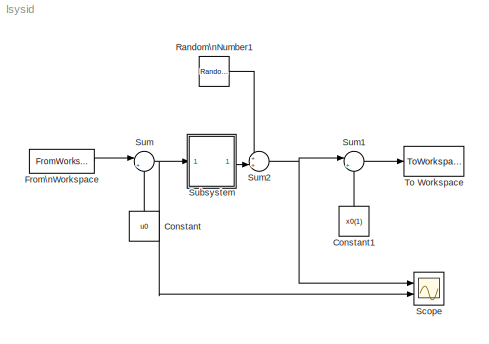
MODEL lsysid
KIND model
CONFIG AbsTol = auto
CONFIG FixedStep = auto
CONFIG MaxStep = auto
CONFIG MinStep = auto
CONFIG RelTol = 1e-3
CONFIG Solver = ode45
CONFIG SolverMode = Auto
CONFIG StartTime = 0.0
CONFIG StopTime = U(end,1)
BLOCK [Constant] Constant
  Value = u0
  VectorParams1D = on
BLOCK [Constant] Constant1
  Value = x0(1)
  VectorParams1D = on
BLOCK [FromWorkspace] From\nWorkspace
  Interpolate = on
  OutputAfterFinalValue = Extrapolation
  SampleTime = h
  VariableName = U
BLOCK [RandomNumber] Random\nNumber1
  Mean = 0
  SampleTime = h
  Seed = 0
  Variance = 1e-7
  VectorParams1D = on
BLOCK [Scope] Scope
  DataFormat = StructureWithTime
  Decimation = 1
  Floating = off
  Grid = on
  LimitDataPoints = on
  MaxDataPoints = 5000
  NumInputPorts = 2
  Ports = [2]
  SampleInput = on
  SampleTime = h
  SaveName = ScopeData
  SaveToWorkspace = off
  TickLabels = OneTimeTick
  TimeRange = 50
  YMax = 2.2~8.5
  YMin = 1.85~7.5
  ZoomMode = on
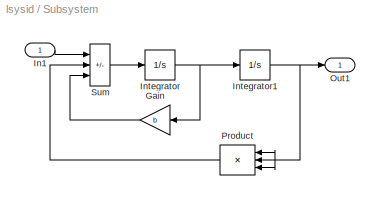
BLOCK [SubSystem] Subsystem
  Ports = [1, 1]
  RTWFcnNameOpts = Auto
  RTWFileNameOpts = Auto
  RTWSystemCode = Auto
  ShowPortLabels = on
  TreatAsAtomicUnit = off
BLOCK [Gain] Subsystem/Gain
  Gain = b
  Multiplication = Element-wise(K.*u)
  SaturateOnIntegerOverflow = on
BLOCK [Inport] Subsystem/In1
  Interpolate = on
  LatchInput = off
  Port = 1
BLOCK [Integrator] Subsystem/Integrator
  AbsoluteTolerance = auto
  ExternalReset = none
  InitialCondition = x0(2)
  InitialConditionSource = internal
  LimitOutput = off
  LowerSaturationLimit = -inf
  Ports = [1, 1]
  ShowSaturationPort = off
  ShowStatePort = off
  UpperSaturationLimit = inf
BLOCK [Integrator] Subsystem/Integrator1
  AbsoluteTolerance = auto
  ExternalReset = none
  InitialCondition = x0(1)
  InitialConditionSource = internal
  LimitOutput = off
  LowerSaturationLimit = -inf
  Ports = [1, 1]
  ShowSaturationPort = off
  ShowStatePort = off
  UpperSaturationLimit = inf
BLOCK [Outport] Subsystem/Out1
  InitialOutput = []
  OutputWhenDisabled = held
  Port = 1
BLOCK [Product] Subsystem/Product
  Inputs = 3
  Multiplication = Element-wise(.*)
  Ports = [3, 1]
  SaturateOnIntegerOverflow = on
BLOCK [Sum] Subsystem/Sum
  IconShape = rectangular
  Inputs = +--
  Ports = [3, 1]
  SaturateOnIntegerOverflow = on
BLOCK [Sum] Sum
  IconShape = round
  Inputs = |++
  Ports = [2, 1]
  SaturateOnIntegerOverflow = on
BLOCK [Sum] Sum1
  IconShape = round
  Inputs = |+-
  Ports = [2, 1]
  SaturateOnIntegerOverflow = on
BLOCK [Sum] Sum2
  IconShape = round
  Inputs = ++|
  Ports = [2, 1]
  SaturateOnIntegerOverflow = on
BLOCK [ToWorkspace] To Workspace
  Decimation = 1
  MaxDataPoints = inf
  SampleTime = h
  SaveFormat = Array
  VariableName = y
LINE Constant1:1 -> Sum1:2
LINE Constant:1 -> Sum:2
LINE From\nWorkspace:1 -> Sum:1
LINE Random\nNumber1:1 -> Sum2:1
LINE Subsystem/Gain:1 -> Subsystem/Sum:3
LINE Subsystem/In1:1 -> Subsystem/Sum:1
NET Subsystem/Integrator1:1 -> Subsystem/Out1:1, Subsystem/Product:1, Subsystem/Product:2, Subsystem/Product:3
NET Subsystem/Integrator:1 -> Subsystem/Gain:1, Subsystem/Integrator1:1
LINE Subsystem/Product:1 -> Subsystem/Sum:2
LINE Subsystem/Sum:1 -> Subsystem/Integrator:1
LINE Subsystem:1 -> Sum2:2
LINE Sum1:1 -> To Workspace:1
NET Sum2:1 -> Scope:1, Sum1:1
NET Sum:1 -> Scope:2, Subsystem:1
note: NET lines group one-source signal fan-out (src -> all destinations, sorted); 1:1 wires keep LINE
